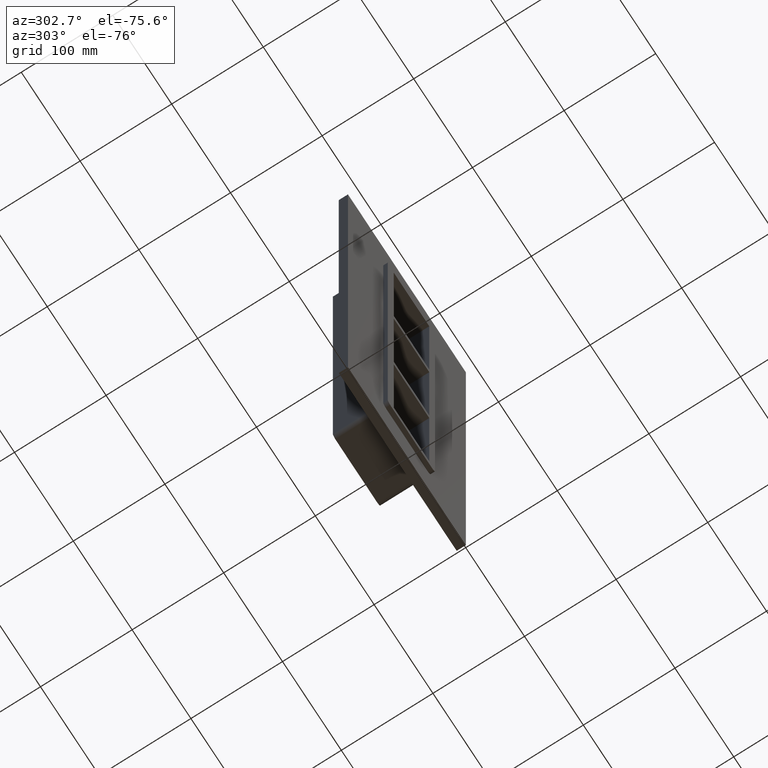
[diagram: clean part render]
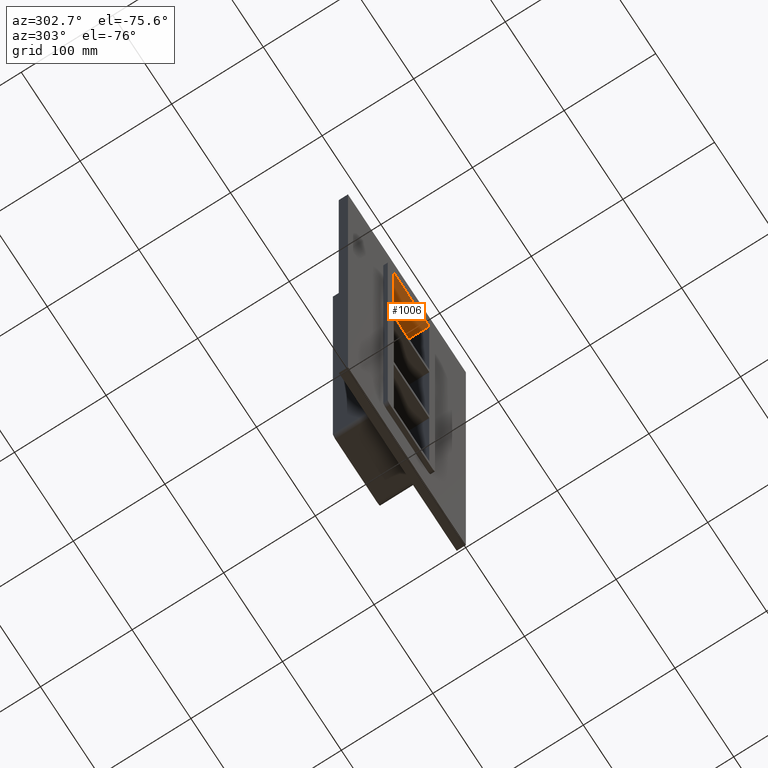
[diagram: same view with one face highlighted and labeled with its STEP entity id]
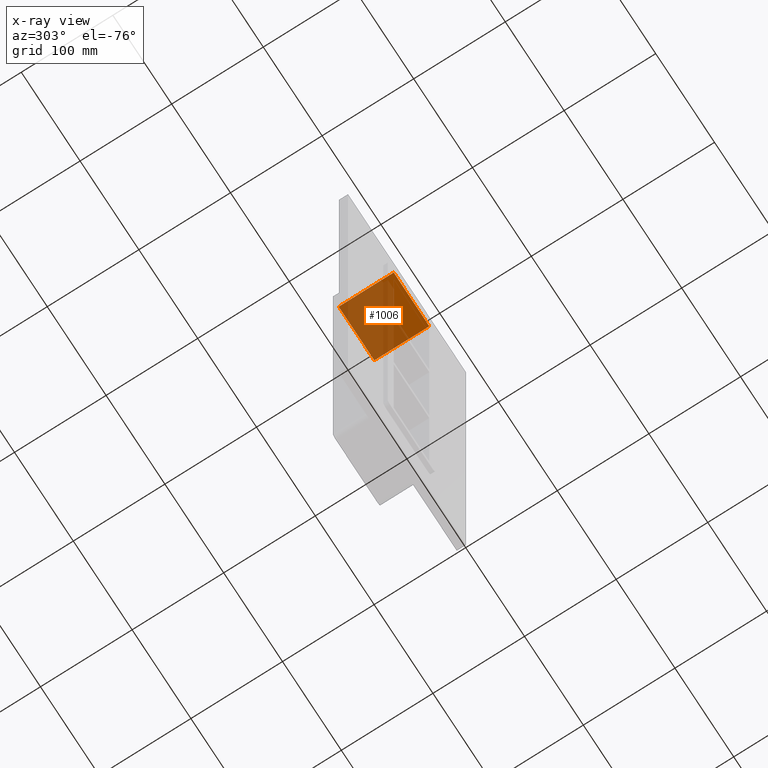
[diagram: x-ray of the same camera — body ghosted, the highlighted face saturated]
A machine part, auxiliary view. The second image highlights one B-rep face of the part: STEP entity #1006.
The next image is the same camera in x-ray: the body ghosted, the highlighted face saturated — about 72% of this face is hidden behind the body in this view.
In plain terms, the highlighted planar face has unit normal (0, 0, 1).
Its self-contained STEP definition (entity closure, byte-faithful):
#154=CARTESIAN_POINT('',(-30.250000000000021,55.0,249.25000000000006));
#155=VERTEX_POINT('',#154);
#162=CARTESIAN_POINT('',(-30.250000000000021,-5.0,249.25000000000006));
#163=VERTEX_POINT('',#162);
#164=CARTESIAN_POINT('',(-30.250000000000021,-5.0,249.25000000000006));
#165=DIRECTION('',(0.0,1.0,0.0));
#166=VECTOR('',#165,60.0);
#167=LINE('',#164,#166);
#168=EDGE_CURVE('',#163,#155,#167,.T.);
#216=CARTESIAN_POINT('',(30.249999999999986,-5.0,249.25000000000006));
#217=VERTEX_POINT('',#216);
#224=CARTESIAN_POINT('',(30.249999999999986,55.0,249.25000000000006));
#225=VERTEX_POINT('',#224);
#226=CARTESIAN_POINT('',(30.249999999999986,-5.0,249.25000000000006));
#227=DIRECTION('',(0.0,1.0,0.0));
#228=VECTOR('',#227,60.0);
#229=LINE('',#226,#228);
#230=EDGE_CURVE('',#217,#225,#229,.T.);
#985=CARTESIAN_POINT('',(-30.250000000000021,0.0,249.25000000000006));
#986=DIRECTION('',(0.0,0.0,1.0));
#987=DIRECTION('',(1.0,0.0,0.0));
#988=AXIS2_PLACEMENT_3D('',#985,#986,#987);
#989=PLANE('',#988);
#990=ORIENTED_EDGE('',*,*,#168,.T.);
#991=CARTESIAN_POINT('',(30.249999999999986,55.0,249.25000000000006));
#992=DIRECTION('',(-1.0,0.0,0.0));
#993=VECTOR('',#992,60.500000000000007);
#994=LINE('',#991,#993);
#995=EDGE_CURVE('',#225,#155,#994,.T.);
#996=ORIENTED_EDGE('',*,*,#995,.F.);
#997=ORIENTED_EDGE('',*,*,#230,.F.);
#998=CARTESIAN_POINT('',(-30.250000000000021,-5.0,249.25000000000006));
#999=DIRECTION('',(1.0,0.0,0.0));
#1000=VECTOR('',#999,60.500000000000007);
#1001=LINE('',#998,#1000);
#1002=EDGE_CURVE('',#163,#217,#1001,.T.);
#1003=ORIENTED_EDGE('',*,*,#1002,.F.);
#1004=EDGE_LOOP('',(#990,#996,#997,#1003));
#1005=FACE_OUTER_BOUND('',#1004,.T.);
#1006=ADVANCED_FACE('',(#1005),#989,.F.);